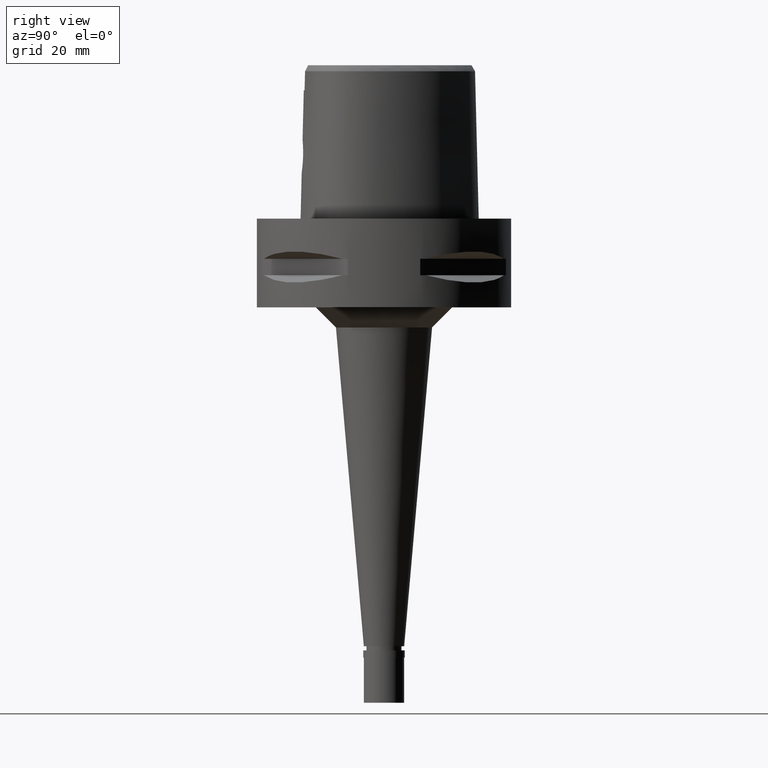
[diagram: clean part render]
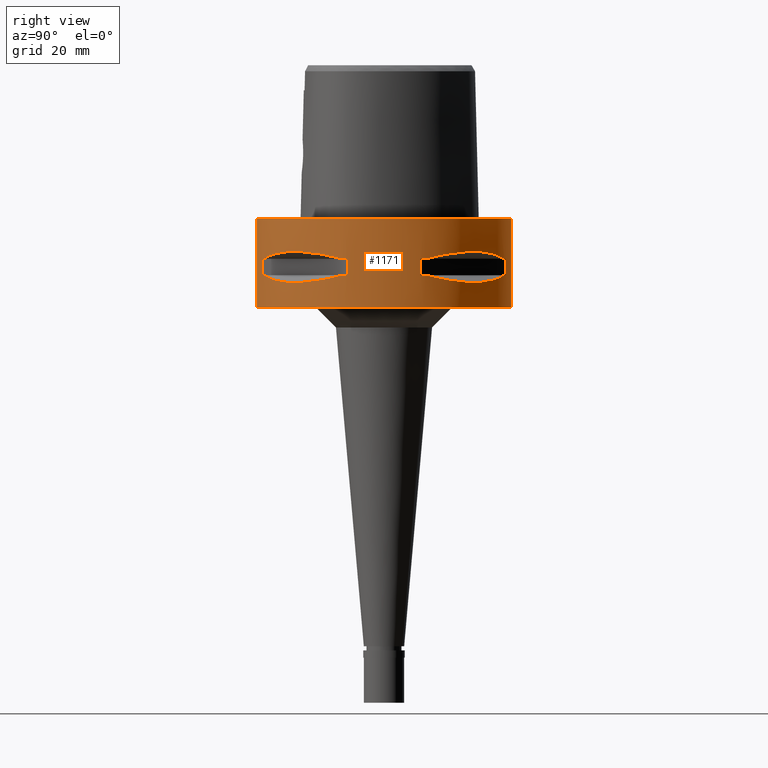
[diagram: same view with one face highlighted and labeled with its STEP entity id]
A machine part, right view. The second image highlights one B-rep face of the part: STEP entity #1171.
In plain terms, the highlighted cylindrical surface (partial cylindrical patch) has radius 31.5 mm, axis along (0, 0, -1).
Its self-contained STEP definition (entity closure, byte-faithful):
#4 = CIRCLE ( 'NONE', #4075, 31.50000000000001776 ) ;
#8 = AXIS2_PLACEMENT_3D ( 'NONE', #4394, #489, #1683 ) ;
#49 = CARTESIAN_POINT ( 'NONE',  ( 27.86285265925912569, 14.89252659059298978, -8.892343702474962086 ) ) ;
#57 = CARTESIAN_POINT ( 'NONE',  ( 21.46242677079465722, -23.08532645887343904, -8.160610089343105500 ) ) ;
#69 = CARTESIAN_POINT ( 'NONE',  ( 16.03138450078563082, 27.11872488589276031, -8.731195798921056905 ) ) ;
#72 = EDGE_CURVE ( 'NONE', #731, #2807, #4, .T. ) ;
#91 = VERTEX_POINT ( 'NONE', #1082 ) ;
#106 = CARTESIAN_POINT ( 'NONE',  ( 26.70521063584601507, -16.70616724745937276, -8.624533381821015254 ) ) ;
#114 = CARTESIAN_POINT ( 'NONE',  ( 17.05047092244498685, 26.48642424310287780, -15.42670883407686411 ) ) ;
#121 = CARTESIAN_POINT ( 'NONE',  ( 28.91382665368218241, 12.73197616790217701, -9.345326382454329561 ) ) ;
#143 = ORIENTED_EDGE ( 'NONE', *, *, #2338, .F. ) ;
#150 = CARTESIAN_POINT ( 'NONE',  ( 13.25636937907020929, -28.62019653467701730, -14.74888225542203379 ) ) ;
#167 = ORIENTED_EDGE ( 'NONE', *, *, #2261, .T. ) ;
#173 = CIRCLE ( 'NONE', #1522, 31.50000000000000711 ) ;
#261 = DIRECTION ( 'NONE',  ( 0.2851174276831918153, 0.9584925938322735872, 0.0000000000000000000 ) ) ;
#307 = EDGE_CURVE ( 'NONE', #4264, #1237, #2578, .T. ) ;
#332 = VECTOR ( 'NONE', #2220, 1000.000000000000000 ) ;
#338 = DIRECTION ( 'NONE',  ( 0.0000000000000000000, 0.0000000000000000000, 1.000000000000000000 ) ) ;
#366 = EDGE_CURVE ( 'NONE', #4749, #858, #648, .T. ) ;
#410 = CARTESIAN_POINT ( 'NONE',  ( 26.84474411198829102, -16.48208282229051491, -8.659051162218206699 ) ) ;
#420 = VECTOR ( 'NONE', #1644, 1000.000000000000000 ) ;
#429 = DIRECTION ( 'NONE',  ( 0.9433937698468619626, -0.3316748332540863653, 0.0000000000000000000 ) ) ;
#442 = VERTEX_POINT ( 'NONE', #4736 ) ;
#444 = DIRECTION ( 'NONE',  ( 0.0000000000000000000, 0.0000000000000000000, -1.000000000000000000 ) ) ;
#445 = CARTESIAN_POINT ( 'NONE',  ( 16.48208282229106558, 26.84474411198810628, -8.659051162218064590 ) ) ;
#453 = CARTESIAN_POINT ( 'NONE',  ( 29.71690375017999841, -10.44775724750000023, -9.949999999998999201 ) ) ;
#461 = CARTESIAN_POINT ( 'NONE',  ( 26.58330558444425762, 16.89910283486581832, -15.40446471307235754 ) ) ;
#470 = CARTESIAN_POINT ( 'NONE',  ( 20.65093790437829213, 23.89673728053755397, -8.160641950979782067 ) ) ;
#488 = CARTESIAN_POINT ( 'NONE',  ( 23.89673728051777957, 20.65093790438612587, -15.83935804901405042 ) ) ;
#489 = DIRECTION ( 'NONE',  ( 0.0000000000000000000, 0.0000000000000000000, -1.000000000000000000 ) ) ;
#498 = CIRCLE ( 'NONE', #1376, 31.50000000000000711 ) ;
#502 = CARTESIAN_POINT ( 'NONE',  ( 16.03138450079733346, -27.11872488588761954, -15.26880420108033398 ) ) ;
#504 = CARTESIAN_POINT ( 'NONE',  ( 10.44775724750000023, -29.71690375017999841, -9.949999999998999201 ) ) ;
#505 = CARTESIAN_POINT ( 'NONE',  ( 26.60451452154846308, -16.86571563436735843, -8.600507042137884639 ) ) ;
#515 = B_SPLINE_CURVE_WITH_KNOTS ( 'NONE', 3,
 ( #453, #2368, #2394, #3523, #1994, #410, #106, #1928, #505, #3477, #2765, #1624, #57, #2021, #4685, #1245, #4435, #1379, #2072, #1701, #4817, #2902, #2520, #4740 ),
 .UNSPECIFIED., .F., .F.,
 ( 4, 1, 1, 1, 1, 1, 2, 2, 2, 1, 1, 1, 1, 1, 2, 2, 4 ),
 ( 0.0000000000000000000, 0.1249999999999945322, 0.1874999999999917843, 0.2187499999999902855, 0.2343749999999894806, 0.2421874999999892031, 0.2460937499999893141, 0.2499999999999893974, 0.4999999999999887867, 0.6249999999999884537, 0.6874999999999883427, 0.7187499999999882316, 0.7343749999999883427, 0.7421874999999883427, 0.7460937499999882316, 0.7499999999999881206, 1.000000000000000000 ),
 .UNSPECIFIED. ) ;
#520 = VERTEX_POINT ( 'NONE', #1243 ) ;
#522 = CARTESIAN_POINT ( 'NONE',  ( 16.89910283486642228, 26.58330558444537672, -8.595535286925651164 ) ) ;
#525 = CARTESIAN_POINT ( 'NONE',  ( 16.80193241490779599, -26.64486562695696037, -15.38992683735752642 ) ) ;
#537 = FACE_OUTER_BOUND ( 'NONE', #3239, .T. ) ;
#548 = ORIENTED_EDGE ( 'NONE', *, *, #3382, .T. ) ;
#564 = CARTESIAN_POINT ( 'NONE',  ( 29.31542262584548553, 11.58970337494890224, -14.35229357167063213 ) ) ;
#580 = CARTESIAN_POINT ( 'NONE',  ( 29.71690375017999841, -10.44775724750000023, -14.05000000000000071 ) ) ;
#583 = LINE ( 'NONE', #2467, #420 ) ;
#611 = VERTEX_POINT ( 'NONE', #828 ) ;
#637 = CARTESIAN_POINT ( 'NONE',  ( 0.0000000000000000000, 1.295860010517999870E-14, -9.950000000000001066 ) ) ;
#640 = CARTESIAN_POINT ( 'NONE',  ( 0.0000000000000000000, 1.295860010517999870E-14, 0.0000000000000000000 ) ) ;
#648 = CIRCLE ( 'NONE', #4723, 31.50000000000001776 ) ;
#654 = VECTOR ( 'NONE', #444, 1000.000000000000000 ) ;
#666 = CARTESIAN_POINT ( 'NONE',  ( 10.44775724750000023, 29.71690375017999841, -14.05000000000000071 ) ) ;
#698 = DIRECTION ( 'NONE',  ( 0.0000000000000000000, 0.0000000000000000000, 1.000000000000000000 ) ) ;
#721 = CARTESIAN_POINT ( 'NONE',  ( 29.71690375017999841, 10.44775724750000023, -14.05000000000000071 ) ) ;
#727 = CARTESIAN_POINT ( 'NONE',  ( 30.19251670572000279, -8.981198972017999438, -9.950000000000001066 ) ) ;
#731 = VERTEX_POINT ( 'NONE', #2722 ) ;
#740 = DIRECTION ( 'NONE',  ( 0.2851174276831918153, -0.9584925938322735872, 0.0000000000000000000 ) ) ;
#747 = EDGE_LOOP ( 'NONE', ( #1299, #143, #167, #840, #2654, #1428, #3036, #3561 ) ) ;
#812 = CARTESIAN_POINT ( 'NONE',  ( 10.44775724750000023, 29.71690375017999841, -9.949999999998999201 ) ) ;
#828 = CARTESIAN_POINT ( 'NONE',  ( 10.44775724750000023, -29.71690375017999841, -14.05000000000000071 ) ) ;
#836 = CARTESIAN_POINT ( 'NONE',  ( 30.19251670572000279, 8.981198972019999616, -9.950000000000001066 ) ) ;
#840 = ORIENTED_EDGE ( 'NONE', *, *, #1392, .F. ) ;
#842 = CARTESIAN_POINT ( 'NONE',  ( 23.08532645887208545, 21.46242677079241901, -8.160610089344563889 ) ) ;
#856 = CARTESIAN_POINT ( 'NONE',  ( 17.35163608580574035, 26.29071741523071282, -15.46976201925525274 ) ) ;
#858 = VERTEX_POINT ( 'NONE', #4571 ) ;
#865 = CARTESIAN_POINT ( 'NONE',  ( 15.11986997310175695, 27.64634172018299552, -8.887921375962042347 ) ) ;
#871 = CARTESIAN_POINT ( 'NONE',  ( 11.58970337496347902, -29.31542262584038028, -14.35229357167449216 ) ) ;
#892 = CARTESIAN_POINT ( 'NONE',  ( 18.86897208073858323, 25.32725744467481732, -8.304119040662614637 ) ) ;
#896 = CARTESIAN_POINT ( 'NONE',  ( 24.23018836746479110, -20.18579225685548195, -15.78559396979238194 ) ) ;
#934 = CARTESIAN_POINT ( 'NONE',  ( 17.14106442935163699, 26.42800887047211944, -15.43984550238531916 ) ) ;
#938 = EDGE_CURVE ( 'NONE', #4749, #442, #3775, .T. ) ;
#960 = DIRECTION ( 'NONE',  ( 0.0000000000000000000, 1.000000000000000000, 0.0000000000000000000 ) ) ;
#973 = VECTOR ( 'NONE', #1514, 1000.000000000000000 ) ;
#989 = VERTEX_POINT ( 'NONE', #3020 ) ;
#1046 = CARTESIAN_POINT ( 'NONE',  ( 30.19251670572000279, 8.981198972017999438, -9.950000000000001066 ) ) ;
#1082 = CARTESIAN_POINT ( 'NONE',  ( 29.71690375017999841, -10.44775724750000023, -9.949999999998999201 ) ) ;
#1087 = LINE ( 'NONE', #1846, #3601 ) ;
#1089 = ORIENTED_EDGE ( 'NONE', *, *, #307, .F. ) ;
#1094 = CIRCLE ( 'NONE', #4782, 31.50000000000000711 ) ;
#1171 = ADVANCED_FACE ( 'NONE', ( #537, #1979, #2455 ), #1633, .T. ) ;
#1184 = CARTESIAN_POINT ( 'NONE',  ( 29.71690375017999841, 10.44775724750000023, -9.949999999998999201 ) ) ;
#1190 = CARTESIAN_POINT ( 'NONE',  ( 0.0000000000000000000, 1.295860010517999870E-14, -9.950000000000001066 ) ) ;
#1237 = VERTEX_POINT ( 'NONE', #2661 ) ;
#1243 = CARTESIAN_POINT ( 'NONE',  ( 0.0000000000000000000, 31.50000000000000000, 0.0000000000000000000 ) ) ;
#1245 = CARTESIAN_POINT ( 'NONE',  ( 17.76952662673057048, -26.01217882834140838, -8.473347783735649230 ) ) ;
#1264 = EDGE_CURVE ( 'NONE', #611, #3090, #173, .T. ) ;
#1266 = CARTESIAN_POINT ( 'NONE',  ( 16.89910283486529252, -26.58330558444471947, -15.40446471307232912 ) ) ;
#1279 = EDGE_LOOP ( 'NONE', ( #4753, #1089, #548, #2519, #3075, #4276, #4697, #3614 ) ) ;
#1299 = ORIENTED_EDGE ( 'NONE', *, *, #1363, .T. ) ;
#1306 = CARTESIAN_POINT ( 'NONE',  ( 20.18579225689579104, 24.23018836742823723, -15.78559396979392560 ) ) ;
#1358 = DIRECTION ( 'NONE',  ( 0.0000000000000000000, 0.0000000000000000000, -1.000000000000000000 ) ) ;
#1363 = EDGE_CURVE ( 'NONE', #91, #1626, #3198, .T. ) ;
#1368 = ORIENTED_EDGE ( 'NONE', *, *, #3068, .T. ) ;
#1376 = AXIS2_PLACEMENT_3D ( 'NONE', #2401, #3063, #4690 ) ;
#1379 = CARTESIAN_POINT ( 'NONE',  ( 17.14106442935111829, -26.42800887047438252, -8.560154497612678881 ) ) ;
#1392 = EDGE_CURVE ( 'NONE', #611, #2973, #3748, .T. ) ;
#1401 = CARTESIAN_POINT ( 'NONE',  ( 0.0000000000000000000, 1.295860010517999870E-14, -14.05000000000000071 ) ) ;
#1428 = ORIENTED_EDGE ( 'NONE', *, *, #2811, .F. ) ;
#1514 = DIRECTION ( 'NONE',  ( 0.0000000000000000000, 0.0000000000000000000, -1.000000000000000000 ) ) ;
#1522 = AXIS2_PLACEMENT_3D ( 'NONE', #4682, #2717, #1570 ) ;
#1536 = CIRCLE ( 'NONE', #4332, 31.50000000000001776 ) ;
#1570 = DIRECTION ( 'NONE',  ( 0.3316748332540863653, -0.9433937698468619626, 0.0000000000000000000 ) ) ;
#1588 = CARTESIAN_POINT ( 'NONE',  ( 16.86571563436744725, 26.60451452154842755, -8.600507042137861546 ) ) ;
#1611 = CARTESIAN_POINT ( 'NONE',  ( 25.32725744468687168, 18.86897208071480136, -15.69588095933130845 ) ) ;
#1613 = AXIS2_PLACEMENT_3D ( 'NONE', #640, #1358, #960 ) ;
#1615 = ORIENTED_EDGE ( 'NONE', *, *, #2421, .T. ) ;
#1618 = CARTESIAN_POINT ( 'NONE',  ( 13.25636937904198653, 28.62019653468731306, -9.251117744584002267 ) ) ;
#1624 = CARTESIAN_POINT ( 'NONE',  ( 23.89673728053307045, -20.65093790437560273, -8.160641950982707726 ) ) ;
#1626 = VERTEX_POINT ( 'NONE', #727 ) ;
#1632 = CARTESIAN_POINT ( 'NONE',  ( 10.44775724750000023, 29.71690375017999841, -14.05000000000000071 ) ) ;
#1633 = CYLINDRICAL_SURFACE ( 'NONE', #8, 31.50000000000000000 ) ;
#1644 = DIRECTION ( 'NONE',  ( 0.0000000000000000000, 0.0000000000000000000, -1.000000000000000000 ) ) ;
#1664 = CARTESIAN_POINT ( 'NONE',  ( 26.42800887047408764, 17.14106442935063868, -8.560154497612989744 ) ) ;
#1668 = CARTESIAN_POINT ( 'NONE',  ( 26.42800887047654967, -17.14106442934675911, -15.43984550238513620 ) ) ;
#1683 = DIRECTION ( 'NONE',  ( 0.0000000000000000000, -1.000000000000000000, 0.0000000000000000000 ) ) ;
#1701 = CARTESIAN_POINT ( 'NONE',  ( 16.98999780422250794, -26.52527364208631511, -8.582119012334645802 ) ) ;
#1718 = B_SPLINE_CURVE_WITH_KNOTS ( 'NONE', 3,
 ( #2013, #3492, #1618, #865, #69, #445, #3145, #3937, #1588, #522, #892, #470, #842, #4221, #2038, #3850, #3470, #1664, #2783, #3191, #3539, #49, #121, #1184 ),
 .UNSPECIFIED., .F., .F.,
 ( 4, 1, 1, 1, 1, 1, 2, 2, 2, 1, 1, 1, 1, 1, 2, 2, 4 ),
 ( 0.0000000000000000000, 0.1249999999999941158, 0.1874999999999911737, 0.2187499999999895361, 0.2343749999999885925, 0.2421874999999883427, 0.2460937499999883427, 0.2499999999999883427, 0.4999999999999802380, 0.6249999999999762412, 0.6874999999999740208, 0.7187499999999731326, 0.7343749999999729106, 0.7421874999999726885, 0.7460937499999727995, 0.7499999999999727995, 1.000000000000000000 ),
 .UNSPECIFIED. ) ;
#1773 = AXIS2_PLACEMENT_3D ( 'NONE', #2264, #698, #4929 ) ;
#1846 = CARTESIAN_POINT ( 'NONE',  ( 30.19251670572000279, -8.981198972017999438, -14.05000000000000071 ) ) ;
#1850 = EDGE_CURVE ( 'NONE', #3511, #858, #1718, .T. ) ;
#1916 = CARTESIAN_POINT ( 'NONE',  ( 0.0000000000000000000, 31.50000000000000000, 0.0000000000000000000 ) ) ;
#1928 = CARTESIAN_POINT ( 'NONE',  ( 26.64486562695862304, -16.80193241490656675, -8.610073162641011635 ) ) ;
#1979 = FACE_BOUND ( 'NONE', #1279, .T. ) ;
#1994 = CARTESIAN_POINT ( 'NONE',  ( 27.11872488589311914, -16.03138450078461474, -8.731195798921326912 ) ) ;
#2013 = CARTESIAN_POINT ( 'NONE',  ( 10.44775724750000023, 29.71690375017999841, -9.949999999998999201 ) ) ;
#2017 = CARTESIAN_POINT ( 'NONE',  ( 16.70616724746217940, -26.70521063584381949, -15.37546661817795624 ) ) ;
#2021 = CARTESIAN_POINT ( 'NONE',  ( 20.18579225688479895, -24.23018836743992210, -8.214406030204505882 ) ) ;
#2031 = CARTESIAN_POINT ( 'NONE',  ( 26.84474411198702981, 16.48208282229089505, -15.34094883778014129 ) ) ;
#2038 = CARTESIAN_POINT ( 'NONE',  ( 25.43927894890487096, 18.59229662066589128, -8.371338736653504142 ) ) ;
#2041 = CARTESIAN_POINT ( 'NONE',  ( 26.29071741523927841, -17.35163608579630079, -15.46976201925489569 ) ) ;
#2054 = CARTESIAN_POINT ( 'NONE',  ( 28.62019653468597724, 13.25636937904471147, -14.74888225541528186 ) ) ;
#2072 = CARTESIAN_POINT ( 'NONE',  ( 17.05047092244508633, -26.48642424310456889, -8.573291165921107293 ) ) ;
#2090 = CIRCLE ( 'NONE', #1613, 31.50000000000000000 ) ;
#2098 = CARTESIAN_POINT ( 'NONE',  ( 28.91382665370159089, -12.73197616784618269, -14.65467361752943098 ) ) ;
#2108 = CARTESIAN_POINT ( 'NONE',  ( 8.981198972017999438, -30.19251670572000279, -14.05000000000000071 ) ) ;
#2128 = CARTESIAN_POINT ( 'NONE',  ( 8.981198972017999438, 30.19251670572000279, -14.05000000000000071 ) ) ;
#2183 = DIRECTION ( 'NONE',  ( 0.0000000000000000000, 0.0000000000000000000, 1.000000000000000000 ) ) ;
#2215 = CARTESIAN_POINT ( 'NONE',  ( 0.0000000000000000000, 1.295860010517999870E-14, -14.05000000000000071 ) ) ;
#2220 = DIRECTION ( 'NONE',  ( 0.0000000000000000000, 0.0000000000000000000, -1.000000000000000000 ) ) ;
#2261 = EDGE_CURVE ( 'NONE', #2302, #2973, #4169, .T. ) ;
#2264 = CARTESIAN_POINT ( 'NONE',  ( 0.0000000000000000000, 1.295860010517999870E-14, -22.00000000000000000 ) ) ;
#2267 = LINE ( 'NONE', #1916, #654 ) ;
#2271 = EDGE_CURVE ( 'NONE', #989, #2935, #2970, .T. ) ;
#2302 = VERTEX_POINT ( 'NONE', #3041 ) ;
#2310 = ORIENTED_EDGE ( 'NONE', *, *, #4326, .F. ) ;
#2338 = EDGE_CURVE ( 'NONE', #2302, #1626, #1087, .T. ) ;
#2342 = DIRECTION ( 'NONE',  ( 0.0000000000000000000, 0.0000000000000000000, 1.000000000000000000 ) ) ;
#2368 = CARTESIAN_POINT ( 'NONE',  ( 29.31542262584659042, -11.58970337494590019, -9.647706428328865158 ) ) ;
#2376 = CARTESIAN_POINT ( 'NONE',  ( 16.98999780422198569, 26.52527364208497573, -15.41788098766329540 ) ) ;
#2390 = CARTESIAN_POINT ( 'NONE',  ( 10.44775724750000023, -29.71690375017999841, -14.05000000000000071 ) ) ;
#2394 = CARTESIAN_POINT ( 'NONE',  ( 28.62019653468813019, -13.25636937903965062, -9.251117744584618663 ) ) ;
#2401 = CARTESIAN_POINT ( 'NONE',  ( 0.0000000000000000000, 1.295860010517999870E-14, -9.950000000000001066 ) ) ;
#2408 = VERTEX_POINT ( 'NONE', #721 ) ;
#2417 = CARTESIAN_POINT ( 'NONE',  ( 26.01217882835178585, -17.76952662671725847, -15.52665221626185676 ) ) ;
#2421 = EDGE_CURVE ( 'NONE', #2935, #2447, #3210, .T. ) ;
#2447 = VERTEX_POINT ( 'NONE', #4119 ) ;
#2455 = FACE_BOUND ( 'NONE', #747, .T. ) ;
#2467 = CARTESIAN_POINT ( 'NONE',  ( 8.981198972017999438, -30.19251670572000279, -9.950000000000001066 ) ) ;
#2494 = CARTESIAN_POINT ( 'NONE',  ( 26.54368690921627305, -16.96123479564985459, -15.41365572341332602 ) ) ;
#2507 = VERTEX_POINT ( 'NONE', #666 ) ;
#2519 = ORIENTED_EDGE ( 'NONE', *, *, #4827, .F. ) ;
#2520 = CARTESIAN_POINT ( 'NONE',  ( 12.73197616788185549, -28.91382665368931271, -9.345326382459711922 ) ) ;
#2578 = LINE ( 'NONE', #2128, #3590 ) ;
#2649 = AXIS2_PLACEMENT_3D ( 'NONE', #2215, #3372, #3740 ) ;
#2654 = ORIENTED_EDGE ( 'NONE', *, *, #1264, .T. ) ;
#2661 = CARTESIAN_POINT ( 'NONE',  ( 8.981198972017999438, 30.19251670572000279, -9.950000000000001066 ) ) ;
#2667 = CARTESIAN_POINT ( 'NONE',  ( 0.0000000000000000000, -31.50000000000000000, 0.0000000000000000000 ) ) ;
#2717 = DIRECTION ( 'NONE',  ( 0.0000000000000000000, 0.0000000000000000000, -1.000000000000000000 ) ) ;
#2722 = CARTESIAN_POINT ( 'NONE',  ( 8.981198972019999616, -30.19251670572000279, -9.950000000000001066 ) ) ;
#2765 = CARTESIAN_POINT ( 'NONE',  ( 25.32725744468942253, -18.86897208071680510, -8.304119040665542073 ) ) ;
#2775 = CARTESIAN_POINT ( 'NONE',  ( 27.64634172018161706, 15.11986997310341962, -15.11207862403678170 ) ) ;
#2783 = CARTESIAN_POINT ( 'NONE',  ( 26.48642424310441257, 17.05047092244481277, -8.573291165921293810 ) ) ;
#2788 = CARTESIAN_POINT ( 'NONE',  ( 20.65093790434436372, -23.89673728056386182, -15.83935804901581079 ) ) ;
#2807 = VERTEX_POINT ( 'NONE', #504 ) ;
#2811 = EDGE_CURVE ( 'NONE', #731, #3090, #583, .T. ) ;
#2819 = CARTESIAN_POINT ( 'NONE',  ( 26.48642424310542509, -17.05047092244215889, -15.42670883407675042 ) ) ;
#2902 = CARTESIAN_POINT ( 'NONE',  ( 14.89252659057268602, -27.86285265926625598, -8.892343702480342671 ) ) ;
#2925 = DIRECTION ( 'NONE',  ( 0.0000000000000000000, 0.0000000000000000000, -1.000000000000000000 ) ) ;
#2935 = VERTEX_POINT ( 'NONE', #3724 ) ;
#2970 = LINE ( 'NONE', #2667, #973 ) ;
#2973 = VERTEX_POINT ( 'NONE', #4222 ) ;
#3020 = CARTESIAN_POINT ( 'NONE',  ( 0.0000000000000000000, -31.50000000000000000, 0.0000000000000000000 ) ) ;
#3036 = ORIENTED_EDGE ( 'NONE', *, *, #72, .T. ) ;
#3041 = CARTESIAN_POINT ( 'NONE',  ( 30.19251670572000279, -8.981198972019999616, -14.05000000000000071 ) ) ;
#3063 = DIRECTION ( 'NONE',  ( 0.0000000000000000000, 0.0000000000000000000, 1.000000000000000000 ) ) ;
#3068 = EDGE_CURVE ( 'NONE', #520, #989, #2090, .T. ) ;
#3075 = ORIENTED_EDGE ( 'NONE', *, *, #4738, .T. ) ;
#3090 = VERTEX_POINT ( 'NONE', #2108 ) ;
#3145 = CARTESIAN_POINT ( 'NONE',  ( 16.70616724745964987, 26.70521063584591914, -8.624533381820938871 ) ) ;
#3160 = CARTESIAN_POINT ( 'NONE',  ( 27.11872488589154528, 16.03138450078616728, -15.26880420107737990 ) ) ;
#3170 = CARTESIAN_POINT ( 'NONE',  ( 18.86897208074864096, -25.32725744465734152, -15.69588095933306704 ) ) ;
#3191 = CARTESIAN_POINT ( 'NONE',  ( 26.52527364208623339, 16.98999780422237649, -8.582119012334738173 ) ) ;
#3196 = CARTESIAN_POINT ( 'NONE',  ( 25.43927894892507169, -18.59229662064666755, -15.62866126334561123 ) ) ;
#3198 = CIRCLE ( 'NONE', #4238, 31.50000000000000711 ) ;
#3210 = CIRCLE ( 'NONE', #1773, 31.50000000000000000 ) ;
#3236 = DIRECTION ( 'NONE',  ( 0.9433937698468619626, 0.3316748332540863653, 0.0000000000000000000 ) ) ;
#3239 = EDGE_LOOP ( 'NONE', ( #1368, #3718, #1615, #2310 ) ) ;
#3272 = EDGE_CURVE ( 'NONE', #91, #2807, #515, .T. ) ;
#3372 = DIRECTION ( 'NONE',  ( 0.0000000000000000000, 0.0000000000000000000, -1.000000000000000000 ) ) ;
#3382 = EDGE_CURVE ( 'NONE', #4264, #2507, #1536, .T. ) ;
#3467 = EDGE_CURVE ( 'NONE', #3511, #1237, #498, .T. ) ;
#3470 = CARTESIAN_POINT ( 'NONE',  ( 26.29071741523360117, 17.35163608580296213, -8.530237980743414994 ) ) ;
#3477 = CARTESIAN_POINT ( 'NONE',  ( 26.58330558444515290, -16.89910283486676690, -8.595535286925606755 ) ) ;
#3492 = CARTESIAN_POINT ( 'NONE',  ( 11.58970337494723424, 29.31542262584612502, -9.647706428328511663 ) ) ;
#3509 = CARTESIAN_POINT ( 'NONE',  ( 26.64486562695759275, 16.80193241490600542, -15.38992683735705391 ) ) ;
#3511 = VERTEX_POINT ( 'NONE', #812 ) ;
#3523 = CARTESIAN_POINT ( 'NONE',  ( 27.64634172018361724, -15.11986997310001080, -8.887921375962509529 ) ) ;
#3533 = CARTESIAN_POINT ( 'NONE',  ( 0.0000000000000000000, 1.295860010517999870E-14, -14.05000000000000071 ) ) ;
#3539 = CARTESIAN_POINT ( 'NONE',  ( 26.54368690921752716, 16.96123479564991499, -8.586344276584833679 ) ) ;
#3542 = CARTESIAN_POINT ( 'NONE',  ( 16.86571563436751475, -26.60451452154716989, -15.39949295786035854 ) ) ;
#3554 = CARTESIAN_POINT ( 'NONE',  ( 16.96123479564913694, 26.54368690921650398, -15.41365572341313239 ) ) ;
#3561 = ORIENTED_EDGE ( 'NONE', *, *, #3272, .F. ) ;
#3580 = CARTESIAN_POINT ( 'NONE',  ( 21.46242677080035932, 23.08532645886616308, -15.83938991065496715 ) ) ;
#3590 = VECTOR ( 'NONE', #2183, 1000.000000000000000 ) ;
#3601 = VECTOR ( 'NONE', #3794, 1000.000000000000000 ) ;
#3609 = CARTESIAN_POINT ( 'NONE',  ( 12.73197616789159525, 28.91382665368562144, -14.65467361754145514 ) ) ;
#3614 = ORIENTED_EDGE ( 'NONE', *, *, #1850, .F. ) ;
#3714 = CARTESIAN_POINT ( 'NONE',  ( 0.0000000000000000000, 1.295860010517999870E-14, -9.950000000000001066 ) ) ;
#3718 = ORIENTED_EDGE ( 'NONE', *, *, #2271, .T. ) ;
#3724 = CARTESIAN_POINT ( 'NONE',  ( 0.0000000000000000000, -31.50000000000000000, -22.00000000000000000 ) ) ;
#3740 = DIRECTION ( 'NONE',  ( 0.9584925938322735872, -0.2851174276831918153, 0.0000000000000000000 ) ) ;
#3748 = B_SPLINE_CURVE_WITH_KNOTS ( 'NONE', 3,
 ( #2390, #871, #150, #3918, #502, #4708, #2017, #525, #3542, #1266, #3170, #2788, #4327, #896, #3196, #2417, #2041, #1668, #2819, #3997, #2494, #4486, #2098, #580 ),
 .UNSPECIFIED., .F., .F.,
 ( 4, 1, 1, 1, 1, 1, 2, 2, 2, 1, 1, 1, 1, 1, 2, 2, 4 ),
 ( 0.0000000000000000000, 0.1250000000000063005, 0.1875000000000094369, 0.2187500000000109357, 0.2343750000000116851, 0.2421875000000119627, 0.2460937500000119627, 0.2500000000000119349, 0.5000000000000025535, 0.6249999999999978906, 0.6874999999999955591, 0.7187499999999945599, 0.7343749999999941158, 0.7421874999999936717, 0.7460937499999935607, 0.7499999999999933387, 1.000000000000000000 ),
 .UNSPECIFIED. ) ;
#3775 = LINE ( 'NONE', #1046, #332 ) ;
#3794 = DIRECTION ( 'NONE',  ( 0.0000000000000000000, 0.0000000000000000000, 1.000000000000000000 ) ) ;
#3850 = CARTESIAN_POINT ( 'NONE',  ( 26.01217882834036743, 17.76952662672886163, -8.473347783736773664 ) ) ;
#3882 = CARTESIAN_POINT ( 'NONE',  ( 29.71690375017999841, 10.44775724750000023, -14.05000000000000071 ) ) ;
#3887 = CARTESIAN_POINT ( 'NONE',  ( 8.981198972019999616, 30.19251670572000279, -14.05000000000000071 ) ) ;
#3903 = CARTESIAN_POINT ( 'NONE',  ( 14.89252659058207939, 27.86285265926221300, -15.10765629752054195 ) ) ;
#3918 = CARTESIAN_POINT ( 'NONE',  ( 15.11986997312254033, -27.64634172017490954, -15.11207862404184787 ) ) ;
#3937 = CARTESIAN_POINT ( 'NONE',  ( 16.80193241490672307, 26.64486562695856264, -8.610073162640969002 ) ) ;
#3997 = CARTESIAN_POINT ( 'NONE',  ( 26.52527364208627958, -16.98999780422056816, -15.41788098766324744 ) ) ;
#4075 = AXIS2_PLACEMENT_3D ( 'NONE', #3714, #4524, #740 ) ;
#4119 = CARTESIAN_POINT ( 'NONE',  ( 0.0000000000000000000, 31.50000000000000000, -22.00000000000000000 ) ) ;
#4169 = CIRCLE ( 'NONE', #2649, 31.50000000000001776 ) ;
#4221 = CARTESIAN_POINT ( 'NONE',  ( 24.23018836743757021, 20.18579225688087320, -8.214406030207063836 ) ) ;
#4222 = CARTESIAN_POINT ( 'NONE',  ( 29.71690375017999841, -10.44775724750000023, -14.05000000000000071 ) ) ;
#4238 = AXIS2_PLACEMENT_3D ( 'NONE', #1190, #2342, #429 ) ;
#4264 = VERTEX_POINT ( 'NONE', #3887 ) ;
#4276 = ORIENTED_EDGE ( 'NONE', *, *, #938, .F. ) ;
#4281 = CARTESIAN_POINT ( 'NONE',  ( 18.59229662067690114, 25.43927894889767316, -15.62866126334676942 ) ) ;
#4310 = B_SPLINE_CURVE_WITH_KNOTS ( 'NONE', 3,
 ( #3882, #564, #2054, #2775, #3160, #2031, #4694, #3509, #4774, #461, #1611, #488, #3580, #1306, #4281, #4368, #856, #934, #114, #2376, #3554, #3903, #3609, #1632 ),
 .UNSPECIFIED., .F., .F.,
 ( 4, 1, 1, 1, 1, 1, 2, 2, 2, 1, 1, 1, 1, 1, 2, 2, 4 ),
 ( 0.0000000000000000000, 0.1250000000000023870, 0.1875000000000036915, 0.2187500000000045797, 0.2343750000000049960, 0.2421875000000053013, 0.2460937500000055789, 0.2500000000000058842, 0.5000000000000076605, 0.6250000000000083267, 0.6875000000000086597, 0.7187500000000088818, 0.7343750000000086597, 0.7421875000000086597, 0.7460937500000084377, 0.7500000000000083267, 1.000000000000000000 ),
 .UNSPECIFIED. ) ;
#4311 = DIRECTION ( 'NONE',  ( 0.0000000000000000000, 0.0000000000000000000, -1.000000000000000000 ) ) ;
#4326 = EDGE_CURVE ( 'NONE', #520, #2447, #2267, .T. ) ;
#4327 = CARTESIAN_POINT ( 'NONE',  ( 23.08532645888704238, -21.46242677077732353, -15.83938991065408963 ) ) ;
#4332 = AXIS2_PLACEMENT_3D ( 'NONE', #1401, #2925, #261 ) ;
#4368 = CARTESIAN_POINT ( 'NONE',  ( 17.76952662673489769, 26.01217882833579154, -15.52665221626253356 ) ) ;
#4394 = CARTESIAN_POINT ( 'NONE',  ( 0.0000000000000000000, 1.295860010517999870E-14, 5.814999999999999503 ) ) ;
#4435 = CARTESIAN_POINT ( 'NONE',  ( 17.35163608580386807, -26.29071741523413763, -8.530237980742814585 ) ) ;
#4486 = CARTESIAN_POINT ( 'NONE',  ( 27.86285265927817889, -14.89252659053665795, -15.10765629750851602 ) ) ;
#4524 = DIRECTION ( 'NONE',  ( 0.0000000000000000000, 0.0000000000000000000, 1.000000000000000000 ) ) ;
#4571 = CARTESIAN_POINT ( 'NONE',  ( 29.71690375017999841, 10.44775724750000023, -9.949999999998999201 ) ) ;
#4682 = CARTESIAN_POINT ( 'NONE',  ( 0.0000000000000000000, 1.295860010517999870E-14, -14.05000000000000071 ) ) ;
#4685 = CARTESIAN_POINT ( 'NONE',  ( 18.59229662066882938, -25.43927894890661889, -8.371338736651582124 ) ) ;
#4690 = DIRECTION ( 'NONE',  ( 0.3316748332540863653, 0.9433937698468619626, 0.0000000000000000000 ) ) ;
#4694 = CARTESIAN_POINT ( 'NONE',  ( 26.70521063584491017, 16.70616724745910275, -15.37546661817714444 ) ) ;
#4697 = ORIENTED_EDGE ( 'NONE', *, *, #366, .T. ) ;
#4708 = CARTESIAN_POINT ( 'NONE',  ( 16.48208282229687427, -26.84474411198493371, -15.34094883778172402 ) ) ;
#4723 = AXIS2_PLACEMENT_3D ( 'NONE', #637, #338, #4823 ) ;
#4736 = CARTESIAN_POINT ( 'NONE',  ( 30.19251670572000279, 8.981198972017999438, -14.05000000000000071 ) ) ;
#4738 = EDGE_CURVE ( 'NONE', #2408, #442, #1094, .T. ) ;
#4740 = CARTESIAN_POINT ( 'NONE',  ( 10.44775724750000023, -29.71690375017999841, -9.949999999998999201 ) ) ;
#4749 = VERTEX_POINT ( 'NONE', #836 ) ;
#4753 = ORIENTED_EDGE ( 'NONE', *, *, #3467, .T. ) ;
#4774 = CARTESIAN_POINT ( 'NONE',  ( 26.60451452154748253, 16.86571563436660526, -15.39949295786011874 ) ) ;
#4782 = AXIS2_PLACEMENT_3D ( 'NONE', #3533, #4311, #3236 ) ;
#4817 = CARTESIAN_POINT ( 'NONE',  ( 16.96123479565023473, -26.54368690921742058, -8.586344276584748414 ) ) ;
#4823 = DIRECTION ( 'NONE',  ( 0.9584925938322735872, 0.2851174276831918153, 0.0000000000000000000 ) ) ;
#4827 = EDGE_CURVE ( 'NONE', #2408, #2507, #4310, .T. ) ;
#4929 = DIRECTION ( 'NONE',  ( 0.0000000000000000000, -1.000000000000000000, 0.0000000000000000000 ) ) ;